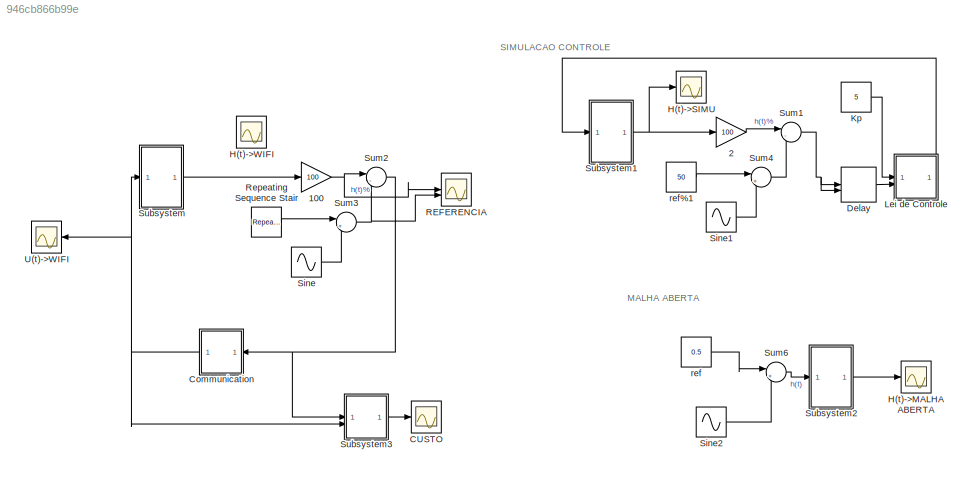
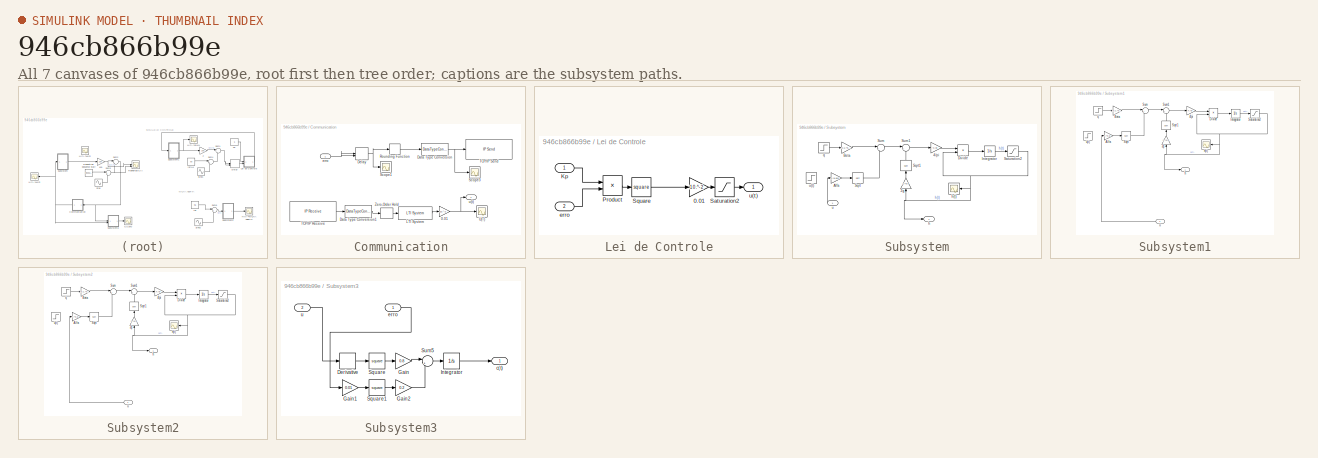
[diagram: thumbnail index - all 7 canvases of the model, root first then tree order]
MODEL slx_946cb866b99e
KIND model
CONFIG AbsTol = auto
CONFIG EnableMultiTasking = off
CONFIG FixedStep = auto
CONFIG MaxStep = auto
CONFIG MinStep = auto
CONFIG RelTol = 1e-3
CONFIG SampleTimeConstraint = Unconstrained
CONFIG SolverName = VariableStepAuto
CONFIG StartTime = 0.0
CONFIG StopTime = 4
BLOCK [Gain] 100
  Gain = 100
BLOCK [Gain] 2
  Commented = on
  Gain = 100
BLOCK [Scope] CUSTO
  Floating = off
  NumInputPorts = 1
  ScopeSpecificationString = Simulink.scopes.TimeScopeBlockCfg('CurrentConfiguration', extmgr.ConfigurationSet(extmgr.Configuration('Core','General UI',true),extmgr.Configuration('Core','Source UI',true),extmgr.Configuration('Sources','WiredSimulink',true,'DataLoggingVariableName','ScopeData9'),extmgr.Configuration('Visuals','Time Domain',true,'SerializedDisplays',{struct('MinYLimReal','-25.76482','MaxYLimReal','231.88341','Y...<+1550ch>
BLOCK [SubSystem] Communication
BLOCK [Gain] Communication/0.01
  Gain = 10.^-2
BLOCK [DataTypeConversion] Communication/Data Type Conversion
  OutDataTypeStr = int8
  RndMeth = Floor
  SaturateOnIntegerOverflow = off
BLOCK [DataTypeConversion] Communication/Data Type Conversion1
  OutDataTypeStr = double
  RndMeth = Floor
  SaturateOnIntegerOverflow = off
BLOCK [Delay] Communication/Delay
  DelayLength = 1
  InitialCondition = 0
  InitialConditionSource = Input port
  InputPortMap = u0,p4
BLOCK [Reference] Communication/LTI System  REF=cstblocks/LTI System
  SourceBlock = cstblocks/LTI System
  SourceType = LTI Block
BLOCK [Rounding] Communication/Rounding Function
  Operator = ceil
BLOCK [Scope] Communication/Scope1
  Floating = off
  NumInputPorts = 1
  ScopeSpecificationString = Simulink.scopes.TimeScopeBlockCfg('CurrentConfiguration', extmgr.ConfigurationSet(extmgr.Configuration('Core','General UI',true),extmgr.Configuration('Core','Source UI',true),extmgr.Configuration('Sources','WiredSimulink',true,'DataLoggingVariableName','ScopeData1'),extmgr.Configuration('Visuals','Time Domain',true,'SerializedDisplays',{struct('MinYLimReal','-7.12162','MaxYLimReal','79.18482','YLa...<+1438ch>
BLOCK [Scope] Communication/Scope3
  Floating = off
  NumInputPorts = 1
  ScopeSpecificationString = Simulink.scopes.TimeScopeBlockCfg('CurrentConfiguration', extmgr.ConfigurationSet(extmgr.Configuration('Core','General UI',true),extmgr.Configuration('Core','Source UI',true),extmgr.Configuration('Sources','WiredSimulink',true,'DataLoggingVariableName','ScopeData2'),extmgr.Configuration('Visuals','Time Domain',true,'SerializedDisplays',{struct('MinYLimReal','-6.625','MaxYLimReal','79.625','YLabelR...<+1443ch>
BLOCK [Reference] Communication/TCP//IP Receive  REF=instrumentlib/TCP//IP Receive
  SourceBlock = instrumentlib/TCP//IP Receive
  SourceType = instrument.system.TCPIPReceive
BLOCK [Reference] Communication/TCP//IP Send  REF=instrumentlib/TCP//IP Send
  SourceBlock = instrumentlib/TCP//IP Send
  SourceType = instrument.system.TCPIPSend
BLOCK [Scope] Communication/U(T)
  Floating = off
  NumInputPorts = 1
  ScopeSpecificationString = Simulink.scopes.TimeScopeBlockCfg('CurrentConfiguration', extmgr.ConfigurationSet(extmgr.Configuration('Core','General UI',true),extmgr.Configuration('Core','Source UI',true),extmgr.Configuration('Sources','WiredSimulink',true,'DataLoggingVariableName','ScopeData1'),extmgr.Configuration('Visuals','Time Domain',true,'SerializedDisplays',{struct('MinYLimReal','-0.125','MaxYLimReal','1.125','YLabelRe...<+1456ch>
BLOCK [ZeroOrderHold] Communication/Zero-Order Hold
  SampleTime = 0.0001
BLOCK [Inport] Communication/erro
BLOCK [Outport] Communication/u(t)
BLOCK [Delay] Delay
  Commented = on
  DelayLength = 1
  InitialCondition = 0
  InitialConditionSource = Input port
  InputPortMap = u0,p4
BLOCK [Scope] H(t)->MALHA ABERTA
  Commented = on
  Floating = off
  NumInputPorts = 1
  ScopeSpecificationString = Simulink.scopes.TimeScopeBlockCfg('CurrentConfiguration', extmgr.ConfigurationSet(extmgr.Configuration('Core','General UI',true),extmgr.Configuration('Core','Source UI',true),extmgr.Configuration('Sources','WiredSimulink',true,'DataLoggingVariableName','ScopeData7'),extmgr.Configuration('Visuals','Time Domain',true,'SerializedDisplays',{struct('MinYLimReal','0.03922','MaxYLimReal','0.64699','YLabe...<+1445ch>
BLOCK [Scope] H(t)->SIMU
  Commented = on
  Floating = off
  NumInputPorts = 1
  ScopeSpecificationString = Simulink.scopes.TimeScopeBlockCfg('CurrentConfiguration', extmgr.ConfigurationSet(extmgr.Configuration('Core','General UI',true),extmgr.Configuration('Core','Source UI',true),extmgr.Configuration('Sources','WiredSimulink',true,'DataLoggingVariableName','ScopeData8'),extmgr.Configuration('Visuals','Time Domain',true,'SerializedDisplays',{struct('MinYLimReal','0.01952','MaxYLimReal','0.82433','YLabe...<+1420ch>
BLOCK [Scope] H(t)->WIFI
  Floating = off
  NumInputPorts = 1
  ScopeSpecificationString = Simulink.scopes.TimeScopeBlockCfg('CurrentConfiguration', extmgr.ConfigurationSet(extmgr.Configuration('Core','General UI',true),extmgr.Configuration('Core','Source UI',true),extmgr.Configuration('Sources','WiredSimulink',true,'DataLoggingVariableName','ScopeData4'),extmgr.Configuration('Visuals','Time Domain',true,'SerializedDisplays',{struct('MinYLimReal','-0.05074','MaxYLimReal','0.85118','YLab...<+1450ch>
BLOCK [Constant] Kp
  Commented = on
  Value = 5
BLOCK [SubSystem] Lei de Controle
  Commented = on
BLOCK [Gain] Lei de Controle/0.01
  Gain = 10.^-2
BLOCK [Inport] Lei de Controle/Kp
BLOCK [Product] Lei de Controle/Product
BLOCK [Saturate] Lei de Controle/Saturation2
  LowerLimit = 0.000001
  UpperLimit = 1
BLOCK [Math] Lei de Controle/Square
  Operator = square
BLOCK [Inport] Lei de Controle/erro
  Port = 2
BLOCK [Outport] Lei de Controle/u(t)
BLOCK [Scope] REFERENCIA
  Floating = off
  NumInputPorts = 2
  ScopeSpecificationString = Simulink.scopes.TimeScopeBlockCfg('CurrentConfiguration', extmgr.ConfigurationSet(extmgr.Configuration('Core','General UI',true),extmgr.Configuration('Core','Source UI',true),extmgr.Configuration('Sources','WiredSimulink',true,'DataLoggingVariableName','ScopeData1'),extmgr.Configuration('Visuals','Time Domain',true,'SerializedDisplays',{struct('MinYLimReal','1.99421','MaxYLimReal','51.19324','YLab...<+1544ch>
BLOCK [Reference] Repeating Sequence Stair  REF=simulink/Sources/Repeating
Sequence
Stair
  SourceBlock = simulink/Sources/Repeating\nSequence\nStair
  SourceType = Repeating Sequence Stair
BLOCK [Sin] Sine
  Frequency = 20
  SampleTime = 0
BLOCK [Sin] Sine1
  Amplitude = 30
  Commented = on
  Frequency = 4
  SampleTime = 0
BLOCK [Sin] Sine2
  Amplitude = 0.1
  Commented = on
  Frequency = 4
  SampleTime = 0
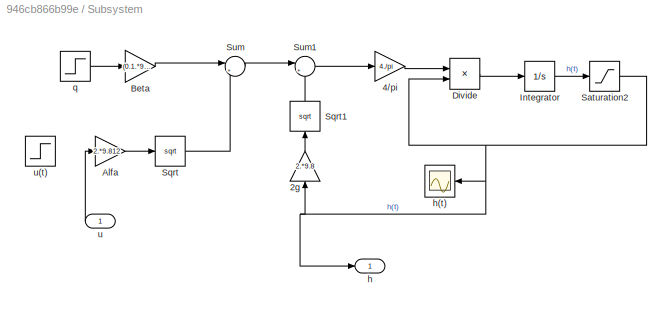
BLOCK [SubSystem] Subsystem
BLOCK [Gain] Subsystem/2g
  Gain = 2.*9.8
  NameLocation = right
BLOCK [Gain] Subsystem/4//pi
  Gain = 4./pi
BLOCK [Gain] Subsystem/Alfa
  Gain = 2.*9.812
BLOCK [Gain] Subsystem/Beta
  Gain = (0.1.*9.812).^0.5
BLOCK [Product] Subsystem/Divide
  Inputs = */
BLOCK [Integrator] Subsystem/Integrator
  InitialCondition = 0.1
BLOCK [Saturate] Subsystem/Saturation2
  LowerLimit = 0.000000000001
  UpperLimit = 1
BLOCK [Sqrt] Subsystem/Sqrt
BLOCK [Sqrt] Subsystem/Sqrt1
  NameLocation = right
BLOCK [Sum] Subsystem/Sum
  Inputs = |++
BLOCK [Sum] Subsystem/Sum1
  Inputs = |+-
BLOCK [Outport] Subsystem/h
BLOCK [Scope] Subsystem/h(t)
  Floating = off
  NumInputPorts = 1
  ScopeSpecificationString = Simulink.scopes.TimeScopeBlockCfg('CurrentConfiguration', extmgr.ConfigurationSet(extmgr.Configuration('Core','General UI',true),extmgr.Configuration('Core','Source UI',true),extmgr.Configuration('Sources','WiredSimulink',true,'DataLoggingVariableName','ScopeData3'),extmgr.Configuration('Visuals','Time Domain',true,'SerializedDisplays',{struct('MinYLimReal','0.05121','MaxYLimReal','0.46644','YLabe...<+1431ch>
BLOCK [Step] Subsystem/q
  After = 0
  SampleTime = 0.1
  Time = 0
BLOCK [Inport] Subsystem/u
BLOCK [Step] Subsystem/u(t)
  After = 0.8
  Before = 0.8
  Commented = on
  SampleTime = 0.1
  Time = 0
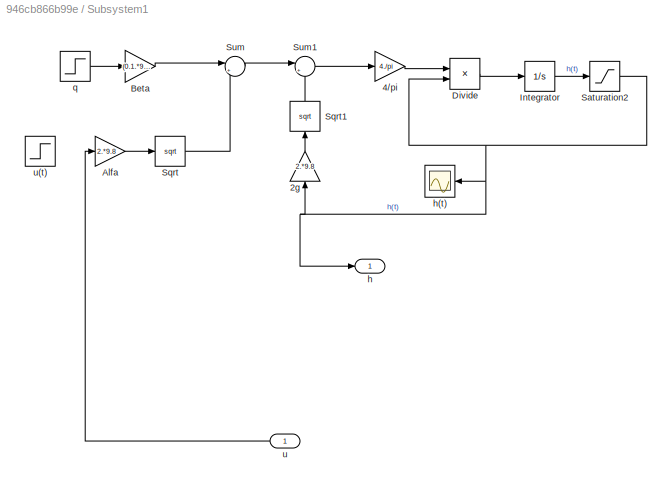
BLOCK [SubSystem] Subsystem1
  Commented = on
BLOCK [Gain] Subsystem1/2g
  Gain = 2.*9.8
  NameLocation = right
BLOCK [Gain] Subsystem1/4//pi
  Gain = 4./pi
BLOCK [Gain] Subsystem1/Alfa
  Gain = 2.*9.8
BLOCK [Gain] Subsystem1/Beta
  Gain = (0.1.*9.8).^0.5
BLOCK [Product] Subsystem1/Divide
  Inputs = */
BLOCK [Integrator] Subsystem1/Integrator
  InitialCondition = 0.1
BLOCK [Saturate] Subsystem1/Saturation2
  LowerLimit = 0.000000000001
  UpperLimit = 1
BLOCK [Sqrt] Subsystem1/Sqrt
BLOCK [Sqrt] Subsystem1/Sqrt1
  NameLocation = right
BLOCK [Sum] Subsystem1/Sum
  Inputs = |++
BLOCK [Sum] Subsystem1/Sum1
  Inputs = |+-
BLOCK [Outport] Subsystem1/h
BLOCK [Scope] Subsystem1/h(t)
  Floating = off
  NumInputPorts = 1
  ScopeSpecificationString = Simulink.scopes.TimeScopeBlockCfg('CurrentConfiguration', extmgr.ConfigurationSet(extmgr.Configuration('Core','General UI',true),extmgr.Configuration('Core','Source UI',true),extmgr.Configuration('Sources','WiredSimulink',true,'DataLoggingVariableName','ScopeData3'),extmgr.Configuration('Visuals','Time Domain',true,'SerializedDisplays',{struct('MinYLimReal','0.04106','MaxYLimReal','0.63044','YLabe...<+1432ch>
BLOCK [Step] Subsystem1/q
  SampleTime = 0.1
BLOCK [Inport] Subsystem1/u
BLOCK [Step] Subsystem1/u(t)
  After = 0.8
  Before = 0.8
  Commented = on
  SampleTime = 0.1
  Time = 0
BLOCK [SubSystem] Subsystem2
  Commented = on
BLOCK [Gain] Subsystem2/2g
  Gain = 2.*9.8
  NameLocation = right
BLOCK [Gain] Subsystem2/4//pi
  Gain = 4./pi
BLOCK [Gain] Subsystem2/Alfa
  Gain = 2.*9.8
BLOCK [Gain] Subsystem2/Beta
  Gain = (0.1.*9.8).^0.5
BLOCK [Product] Subsystem2/Divide
  Inputs = */
BLOCK [Integrator] Subsystem2/Integrator
  InitialCondition = 0.1
BLOCK [Saturate] Subsystem2/Saturation2
  LowerLimit = 0.000000000001
  UpperLimit = 1
BLOCK [Sqrt] Subsystem2/Sqrt
BLOCK [Sqrt] Subsystem2/Sqrt1
  NameLocation = right
BLOCK [Sum] Subsystem2/Sum
  Inputs = |++
BLOCK [Sum] Subsystem2/Sum1
  Inputs = |+-
BLOCK [Outport] Subsystem2/h
BLOCK [Scope] Subsystem2/h(t)
  Floating = off
  NumInputPorts = 1
  ScopeSpecificationString = Simulink.scopes.TimeScopeBlockCfg('CurrentConfiguration', extmgr.ConfigurationSet(extmgr.Configuration('Core','General UI',true),extmgr.Configuration('Core','Source UI',true),extmgr.Configuration('Sources','WiredSimulink',true,'DataLoggingVariableName','ScopeData3'),extmgr.Configuration('Visuals','Time Domain',true,'SerializedDisplays',{struct('MinYLimReal','0.04106','MaxYLimReal','0.63044','YLabe...<+1428ch>
BLOCK [Step] Subsystem2/q
  After = 0
  SampleTime = 0.1
  Time = 0
BLOCK [Inport] Subsystem2/u
BLOCK [Step] Subsystem2/u(t)
  After = 0.8
  Before = 0.8
  Commented = on
  SampleTime = 0.1
  Time = 0
BLOCK [SubSystem] Subsystem3
BLOCK [Derivative] Subsystem3/Derivative
BLOCK [Gain] Subsystem3/Gain
  Gain = 0.8
BLOCK [Gain] Subsystem3/Gain1
  Gain = 0.01
BLOCK [Gain] Subsystem3/Gain2
  Gain = 0.2
BLOCK [Integrator] Subsystem3/Integrator
BLOCK [Math] Subsystem3/Square
  Operator = square
BLOCK [Math] Subsystem3/Square1
  Operator = square
BLOCK [Sum] Subsystem3/Sum5
  Inputs = |++
BLOCK [Outport] Subsystem3/c(t)
BLOCK [Inport] Subsystem3/erro
BLOCK [Inport] Subsystem3/u
  Port = 2
BLOCK [Sum] Sum1
  Commented = on
  Inputs = |-+
BLOCK [Sum] Sum2
  Inputs = |-+
BLOCK [Sum] Sum3
  Inputs = |++
BLOCK [Sum] Sum4
  Commented = on
  Inputs = |++
BLOCK [Sum] Sum6
  Commented = on
  Inputs = |++
BLOCK [Scope] U(t)->WIFI
  Floating = off
  NumInputPorts = 1
  ScopeSpecificationString = Simulink.scopes.TimeScopeBlockCfg('CurrentConfiguration', extmgr.ConfigurationSet(extmgr.Configuration('Core','General UI',true),extmgr.Configuration('Core','Source UI',true),extmgr.Configuration('Sources','WiredSimulink',true,'DataLoggingVariableName','ScopeData6'),extmgr.Configuration('Visuals','Time Domain',true,'SerializedDisplays',{struct('MinYLimReal','-0.09882','MaxYLimReal','0.88937','YLab...<+1542ch>
BLOCK [Constant] ref
  Commented = on
  Value = 0.5
BLOCK [Constant] ref%1
  Commented = on
  Value = 50
ANNOTATION (root): MALHA ABERTA
ANNOTATION (root): SIMULACAO CONTROLE
NET 100:1 -> REFERENCIA:1, Sum2:1
LINE 2:1 -> Sum1:1
NET Communication/0.01:1 -> Communication/U(T):1, Communication/u(t):1
LINE Communication/Data Type Conversion1:1 -> Communication/Zero-Order Hold:1
NET Communication/Data Type Conversion:1 -> Communication/Scope3:1, Communication/TCP//IP Send:1
NET Communication/Delay:1 -> Communication/Rounding Function:1, Communication/Scope1:1
LINE Communication/LTI System:1 -> Communication/0.01:1
LINE Communication/Rounding Function:1 -> Communication/Data Type Conversion:1
LINE Communication/TCP//IP Receive:1 -> Communication/Data Type Conversion1:1
LINE Communication/Zero-Order Hold:1 -> Communication/LTI System:1
NET Communication/erro:1 -> Communication/Delay:1, Communication/Delay:2
NET Communication:1 -> Subsystem3:2, Subsystem:1, U(t)->WIFI:1
LINE Delay:1 -> Lei de Controle:2
LINE Kp:1 -> Lei de Controle:1
LINE Lei de Controle/0.01:1 -> Lei de Controle/Saturation2:1
LINE Lei de Controle/Kp:1 -> Lei de Controle/Product:1
LINE Lei de Controle/Product:1 -> Lei de Controle/Square:1
LINE Lei de Controle/Saturation2:1 -> Lei de Controle/u(t):1
LINE Lei de Controle/Square:1 -> Lei de Controle/0.01:1
LINE Lei de Controle/erro:1 -> Lei de Controle/Product:2
LINE Lei de Controle:1 -> Subsystem1:1
LINE Repeating Sequence Stair:1 -> Sum3:1
LINE Sine1:1 -> Sum4:2
LINE Sine2:1 -> Sum6:2
LINE Sine:1 -> Sum3:2
LINE Subsystem/2g:1 -> Subsystem/Sqrt1:1
LINE Subsystem/4//pi:1 -> Subsystem/Divide:1
LINE Subsystem/Alfa:1 -> Subsystem/Sqrt:1
LINE Subsystem/Beta:1 -> Subsystem/Sum:1
LINE Subsystem/Divide:1 -> Subsystem/Integrator:1
LINE Subsystem/Integrator:1 -> Subsystem/Saturation2:1
NET Subsystem/Saturation2:1 -> Subsystem/2g:1, Subsystem/Divide:2, Subsystem/h(t):1, Subsystem/h:1
LINE Subsystem/Sqrt1:1 -> Subsystem/Sum1:2
LINE Subsystem/Sqrt:1 -> Subsystem/Sum:2
LINE Subsystem/Sum1:1 -> Subsystem/4//pi:1
LINE Subsystem/Sum:1 -> Subsystem/Sum1:1
LINE Subsystem/q:1 -> Subsystem/Beta:1
LINE Subsystem/u:1 -> Subsystem/Alfa:1
LINE Subsystem1/2g:1 -> Subsystem1/Sqrt1:1
LINE Subsystem1/4//pi:1 -> Subsystem1/Divide:1
LINE Subsystem1/Alfa:1 -> Subsystem1/Sqrt:1
LINE Subsystem1/Beta:1 -> Subsystem1/Sum:1
LINE Subsystem1/Divide:1 -> Subsystem1/Integrator:1
LINE Subsystem1/Integrator:1 -> Subsystem1/Saturation2:1
NET Subsystem1/Saturation2:1 -> Subsystem1/2g:1, Subsystem1/Divide:2, Subsystem1/h(t):1, Subsystem1/h:1
LINE Subsystem1/Sqrt1:1 -> Subsystem1/Sum1:2
LINE Subsystem1/Sqrt:1 -> Subsystem1/Sum:2
LINE Subsystem1/Sum1:1 -> Subsystem1/4//pi:1
LINE Subsystem1/Sum:1 -> Subsystem1/Sum1:1
LINE Subsystem1/q:1 -> Subsystem1/Beta:1
LINE Subsystem1/u:1 -> Subsystem1/Alfa:1
NET Subsystem1:1 -> 2:1, H(t)->SIMU:1
LINE Subsystem2/2g:1 -> Subsystem2/Sqrt1:1
LINE Subsystem2/4//pi:1 -> Subsystem2/Divide:1
LINE Subsystem2/Alfa:1 -> Subsystem2/Sqrt:1
LINE Subsystem2/Beta:1 -> Subsystem2/Sum:1
LINE Subsystem2/Divide:1 -> Subsystem2/Integrator:1
LINE Subsystem2/Integrator:1 -> Subsystem2/Saturation2:1
NET Subsystem2/Saturation2:1 -> Subsystem2/2g:1, Subsystem2/Divide:2, Subsystem2/h(t):1, Subsystem2/h:1
LINE Subsystem2/Sqrt1:1 -> Subsystem2/Sum1:2
LINE Subsystem2/Sqrt:1 -> Subsystem2/Sum:2
LINE Subsystem2/Sum1:1 -> Subsystem2/4//pi:1
LINE Subsystem2/Sum:1 -> Subsystem2/Sum1:1
LINE Subsystem2/q:1 -> Subsystem2/Beta:1
LINE Subsystem2/u:1 -> Subsystem2/Alfa:1
LINE Subsystem2:1 -> H(t)->MALHA ABERTA:1
LINE Subsystem3/Derivative:1 -> Subsystem3/Square:1
LINE Subsystem3/Gain1:1 -> Subsystem3/Square1:1
LINE Subsystem3/Gain2:1 -> Subsystem3/Sum5:2
LINE Subsystem3/Gain:1 -> Subsystem3/Sum5:1
LINE Subsystem3/Integrator:1 -> Subsystem3/c(t):1
LINE Subsystem3/Square1:1 -> Subsystem3/Gain2:1
LINE Subsystem3/Square:1 -> Subsystem3/Gain:1
LINE Subsystem3/Sum5:1 -> Subsystem3/Integrator:1
LINE Subsystem3/erro:1 -> Subsystem3/Gain1:1
LINE Subsystem3/u:1 -> Subsystem3/Derivative:1
LINE Subsystem3:1 -> CUSTO:1
LINE Subsystem:1 -> 100:1
NET Sum1:1 -> Delay:1, Delay:2
NET Sum2:1 -> Communication:1, Subsystem3:1
NET Sum3:1 -> REFERENCIA:2, Sum2:2
LINE Sum4:1 -> Sum1:2
LINE Sum6:1 -> Subsystem2:1
LINE ref%1:1 -> Sum4:1
LINE ref:1 -> Sum6:1
note: NET lines group one-source signal fan-out (src -> all destinations, sorted); 1:1 wires keep LINE
